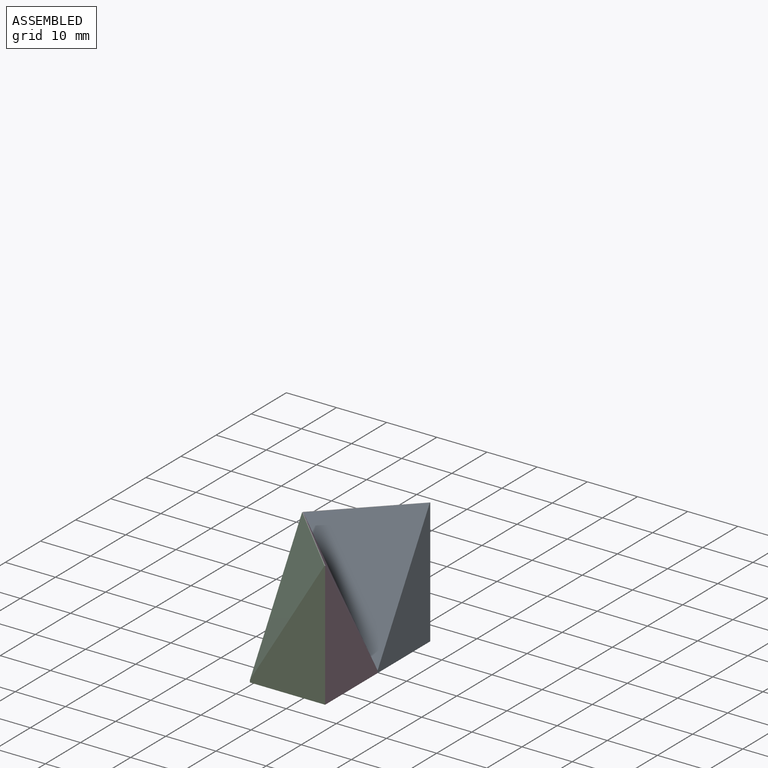
[diagram: assembled view]
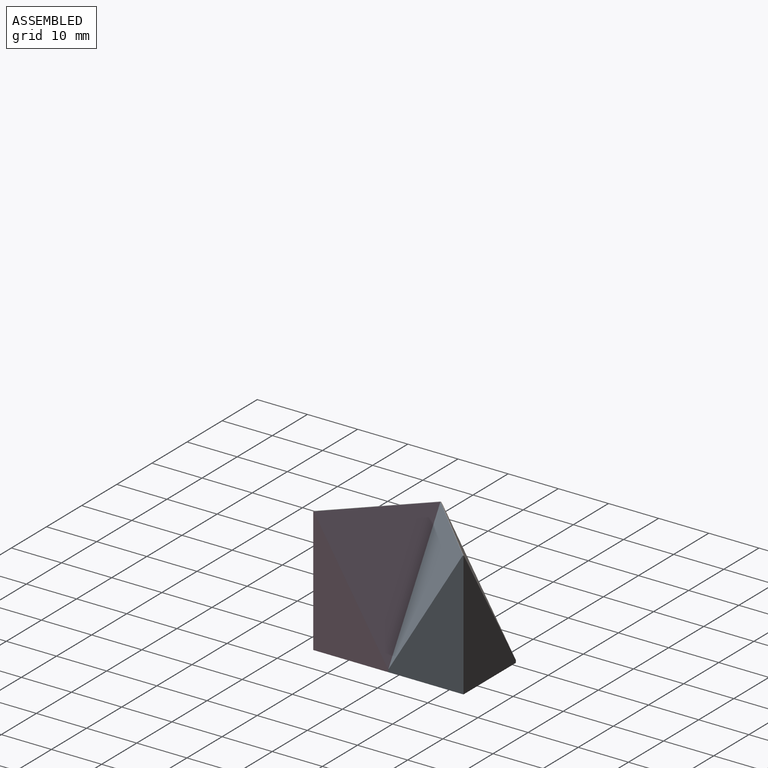
[diagram: assembled view, second angle]
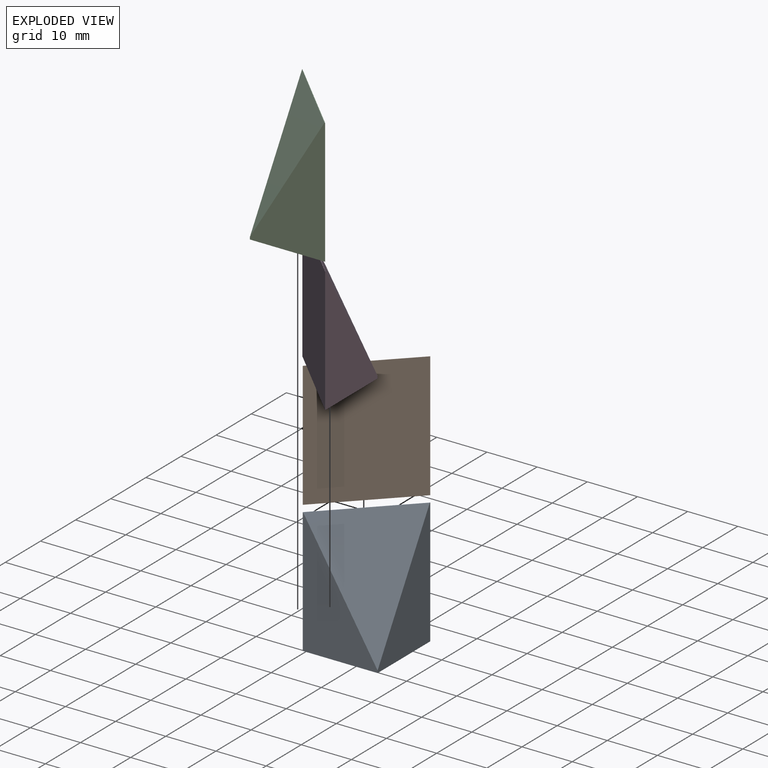
[diagram: exploded view]
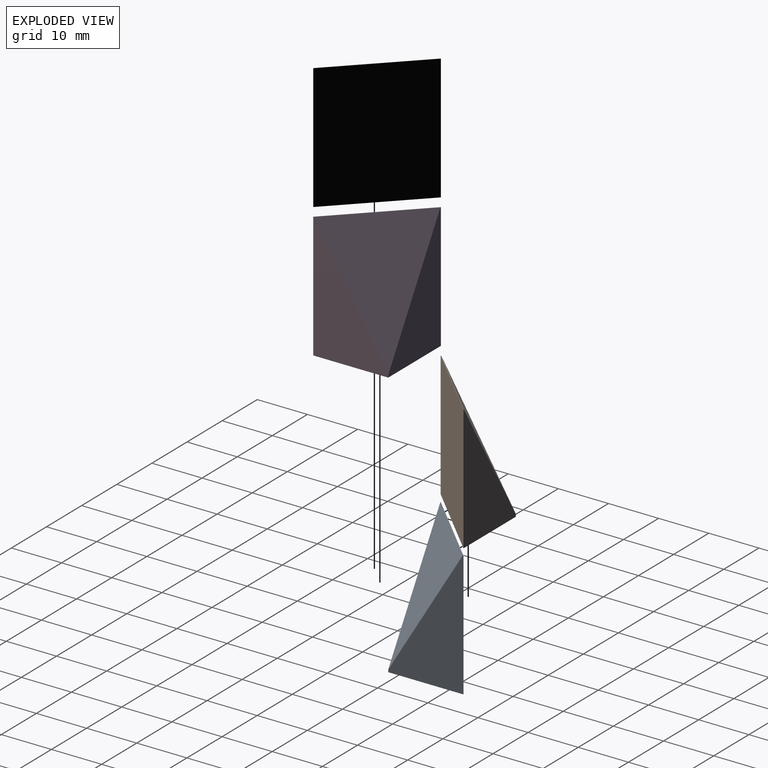
[diagram: exploded view, second angle]
ASSEMBLY  parts=4 mates=3
PART A: 6 faces, bbox 15x14.9x25 mm
  f0: plane 25x14.93mm, normal (-1,0,0), area 191.1mm2, adj f1,f2,f3,f4,f5
  f1: plane 15x14.93mm, normal (0,0,1), area 1.7mm2, adj f0,f2,f4,f5
  f2: plane 25x15mm, normal (0,-1,0), area 192.8mm2, adj f0,f1,f3,f4,f5
  f3: plane 15x14.93mm, normal (0,0,-1), area 112mm2, adj f0,f2,f5
  f4: plane 24.53x14.85mm, normal (-0.65,-0.65,0.39), area 280.3mm2, adj f0,f1,f2
  f5: plane 25x15mm, normal (0.71,0.71,0), area 529.1mm2, adj f0,f1,f2,f3
PART B: same geometry as A
PART C: same geometry as A
PART D: same geometry as A
PLACE A rot(axis=(0,0,1),90deg) t=(-4.88,23.71,0.91)mm
PLACE B rot(axis=(0,0,-1),90deg) t=(-19.81,8.71,0.91)mm
PLACE C t=(-4.88,-6.22,0.91)mm
PLACE D rot(axis=(0,0,-1),180deg) t=(-19.88,8.71,0.91)mm
MATE fastened D.f3 <-> A.f3  axis (0,0,1) through (-4.88,8.71,0.91)mm
MATE fastened C.f3 <-> D.f3  axis (0,0,1) through (-4.88,-6.22,0.91)mm
MATE fastened A.f3 <-> B.f3  axis (0,0,1) through (-4.88,23.71,0.91)mm
